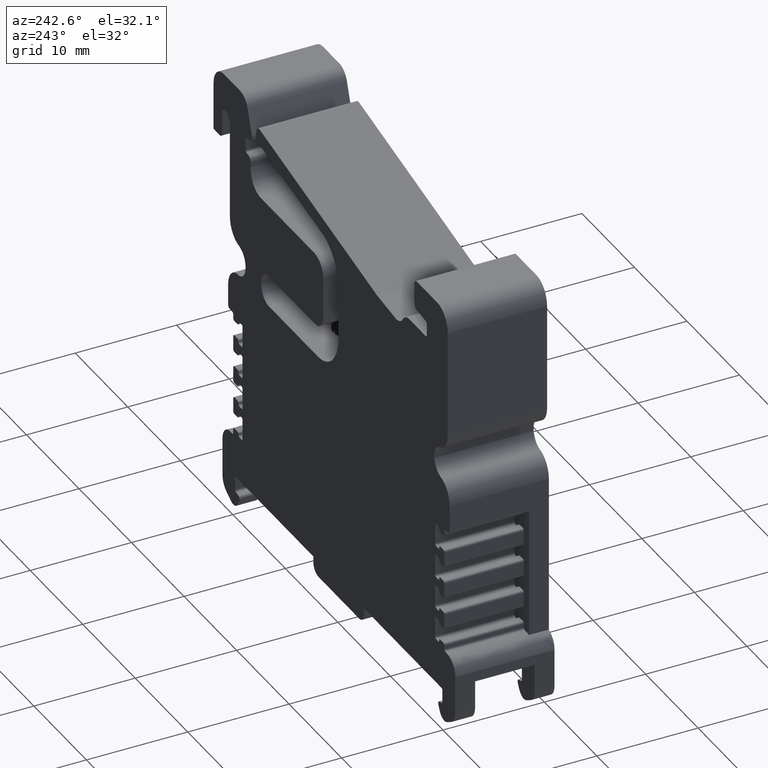
[diagram: clean part render]
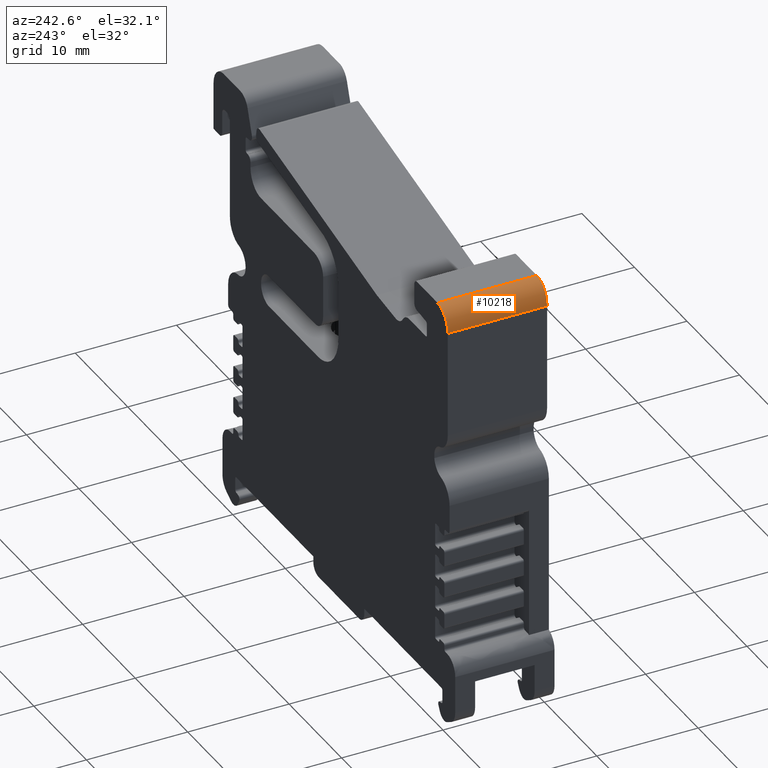
[diagram: same view with one face highlighted and labeled with its STEP entity id]
A machine part, auxiliary view. The second image highlights one B-rep face of the part: STEP entity #10218.
In plain terms, the highlighted face is a freeform B-spline surface patch.
Its self-contained STEP definition (entity closure, byte-faithful):
#20 =( BOUNDED_SURFACE ( )  B_SPLINE_SURFACE ( 3, 1, ( 
 ( #2398, #2384 ),
 ( #2371, #2368 ),
 ( #2399, #2387 ),
 ( #2388, #2372 ) ),
 .UNSPECIFIED., .F., .F., .F. ) 
 B_SPLINE_SURFACE_WITH_KNOTS ( ( 4, 4 ),
 ( 2, 2 ),
 ( 0.7500000000000000000, 1.000000000000000000 ),
 ( 0.0000000000000000000, 1.000000000000000000 ),
 .UNSPECIFIED. ) 
 GEOMETRIC_REPRESENTATION_ITEM ( )  RATIONAL_B_SPLINE_SURFACE ( (
 ( 0.5000000000000000000, 0.5000000000000000000),
 ( 0.5000000000000000000, 0.5000000000000000000),
 ( 0.6666666666666667400, 0.6666666666666667400),
 ( 1.000000000000000000, 1.000000000000000000) ) ) 
 REPRESENTATION_ITEM ( '' )  SURFACE ( )  );
#229 =( BOUNDED_CURVE ( )  B_SPLINE_CURVE ( 3, ( #1544, #1537, #1527, #1549 ),
 .UNSPECIFIED., .F., .T. ) 
 B_SPLINE_CURVE_WITH_KNOTS ( ( 4, 4 ),
 ( 0.0000000000000000000, 0.003144850464088191700 ),
 .UNSPECIFIED. ) 
 CURVE ( )  GEOMETRIC_REPRESENTATION_ITEM ( )  RATIONAL_B_SPLINE_CURVE ( ( 1.000000000000000000, 0.6666666666666667400, 0.5000000000000000000, 0.5000000000000000000 ) ) 
 REPRESENTATION_ITEM ( '' )  );
#698 = CARTESIAN_POINT ( 'NONE',  ( -18.76225020262297200, -9.901244391999814100, 38.75086055759770400 ) ) ;
#708 = CARTESIAN_POINT ( 'NONE',  ( -19.74042252603091900, -9.901244391999823000, 38.75086055759769700 ) ) ;
#719 = CARTESIAN_POINT ( 'NONE',  ( -20.71859484943894400, -9.901244391999814100, 36.68207074870053900 ) ) ;
#723 = CARTESIAN_POINT ( 'NONE',  ( -20.71859484943886500, -9.901244391999828300, 38.06126395463198300 ) ) ;
#1527 = CARTESIAN_POINT ( 'NONE',  ( -20.71859484943886500, -0.1012443920222266500, 38.06126395463198300 ) ) ;
#1537 = CARTESIAN_POINT ( 'NONE',  ( -19.74042252603091900, -0.1012443920222240400, 38.75086055759769700 ) ) ;
#1544 = CARTESIAN_POINT ( 'NONE',  ( -18.76225020262297200, -0.1012443920222211400, 38.75086055759770400 ) ) ;
#1549 = CARTESIAN_POINT ( 'NONE',  ( -20.71859484943887300, -0.1012443920222224500, 36.68207074870053900 ) ) ;
#2368 = CARTESIAN_POINT ( 'NONE',  ( -20.71859484943886500, -0.1012443920222223100, 38.06126395463198300 ) ) ;
#2371 = CARTESIAN_POINT ( 'NONE',  ( -20.71859484943886500, -9.901244391999814100, 38.06126395463198300 ) ) ;
#2372 = CARTESIAN_POINT ( 'NONE',  ( -18.76225020262297200, -0.1012443920222205800, 38.75086055759770400 ) ) ;
#2384 = CARTESIAN_POINT ( 'NONE',  ( -20.71859484943886500, -0.1012443920222223100, 36.68207074870053900 ) ) ;
#2387 = CARTESIAN_POINT ( 'NONE',  ( -19.74042252603091900, -0.1012443920222197000, 38.75086055759769000 ) ) ;
#2388 = CARTESIAN_POINT ( 'NONE',  ( -18.76225020262297200, -9.901244391999812300, 38.75086055759770400 ) ) ;
#2398 = CARTESIAN_POINT ( 'NONE',  ( -20.71859484943886500, -9.901244391999814100, 36.68207074870053900 ) ) ;
#2399 = CARTESIAN_POINT ( 'NONE',  ( -19.74042252603091900, -9.901244391999812300, 38.75086055759769000 ) ) ;
#2999 = FACE_OUTER_BOUND ( 'NONE', #4427, .T. ) ;
#3155 =( BOUNDED_CURVE ( )  B_SPLINE_CURVE ( 3, ( #719, #723, #708, #698 ),
 .UNSPECIFIED., .F., .T. ) 
 B_SPLINE_CURVE_WITH_KNOTS ( ( 4, 4 ),
 ( 1.430489624538199200E-017, 0.003144716318132978800 ),
 .UNSPECIFIED. ) 
 CURVE ( )  GEOMETRIC_REPRESENTATION_ITEM ( )  RATIONAL_B_SPLINE_CURVE ( ( 0.5000000000000000000, 0.5000000000000000000, 0.6666666666666667400, 1.000000000000000000 ) ) 
 REPRESENTATION_ITEM ( '' )  );
#4427 = EDGE_LOOP ( 'NONE', ( #4521, #4495, #4499, #4496 ) ) ;
#4495 = ORIENTED_EDGE ( 'NONE', *, *, #11453, .T. ) ;
#4496 = ORIENTED_EDGE ( 'NONE', *, *, #11751, .T. ) ;
#4499 = ORIENTED_EDGE ( 'NONE', *, *, #10442, .T. ) ;
#4521 = ORIENTED_EDGE ( 'NONE', *, *, #10456, .F. ) ;
#6070 = VERTEX_POINT ( 'NONE', #9574 ) ;
#6124 = VERTEX_POINT ( 'NONE', #9630 ) ;
#6665 = VERTEX_POINT ( 'NONE', #10135 ) ;
#7208 = VERTEX_POINT ( 'NONE', #10148 ) ;
#8557 = VECTOR ( 'NONE', #12320, 1000.000000000000000 ) ;
#8566 = VECTOR ( 'NONE', #12293, 1000.000000000000000 ) ;
#9574 = CARTESIAN_POINT ( 'NONE',  ( -18.76225020262297200, -9.901244391999814100, 38.75086055759770400 ) ) ;
#9630 = CARTESIAN_POINT ( 'NONE',  ( -20.71859484943894400, -9.901244391999814100, 36.68207074870053900 ) ) ;
#10135 = CARTESIAN_POINT ( 'NONE',  ( -20.71859484943887300, -0.1012443920222224500, 36.68207074870053900 ) ) ;
#10148 = CARTESIAN_POINT ( 'NONE',  ( -18.76225020262297200, -0.1012443920222211400, 38.75086055759770400 ) ) ;
#10218 = ADVANCED_FACE ( 'NONE', ( #2999 ), #20, .T. ) ;
#10442 = EDGE_CURVE ( 'NONE', #6665, #6124, #12291, .T. ) ;
#10456 = EDGE_CURVE ( 'NONE', #7208, #6070, #12330, .T. ) ;
#11453 = EDGE_CURVE ( 'NONE', #7208, #6665, #229, .T. ) ;
#11751 = EDGE_CURVE ( 'NONE', #6124, #6070, #3155, .T. ) ;
#12260 = CARTESIAN_POINT ( 'NONE',  ( -20.71859484943886500, -5.001244392011018100, 36.68207074870053900 ) ) ;
#12291 = LINE ( 'NONE', #12260, #8566 ) ;
#12293 = DIRECTION ( 'NONE',  ( -0.0000000000000000000, -1.000000000000000000, -0.0000000000000000000 ) ) ;
#12319 = CARTESIAN_POINT ( 'NONE',  ( -18.76225020262297200, -9.901244391999814100, 38.75086055759771100 ) ) ;
#12320 = DIRECTION ( 'NONE',  ( -0.0000000000000000000, -1.000000000000000000, -0.0000000000000000000 ) ) ;
#12330 = LINE ( 'NONE', #12319, #8557 ) ;